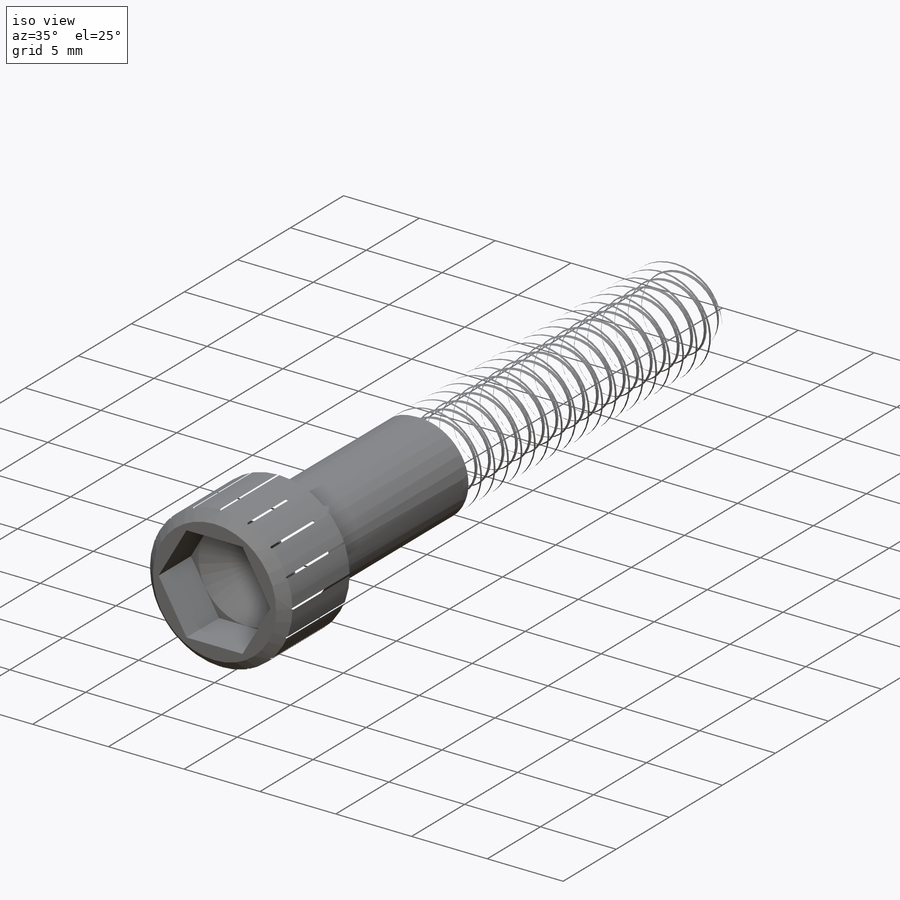
[diagram: iso view]
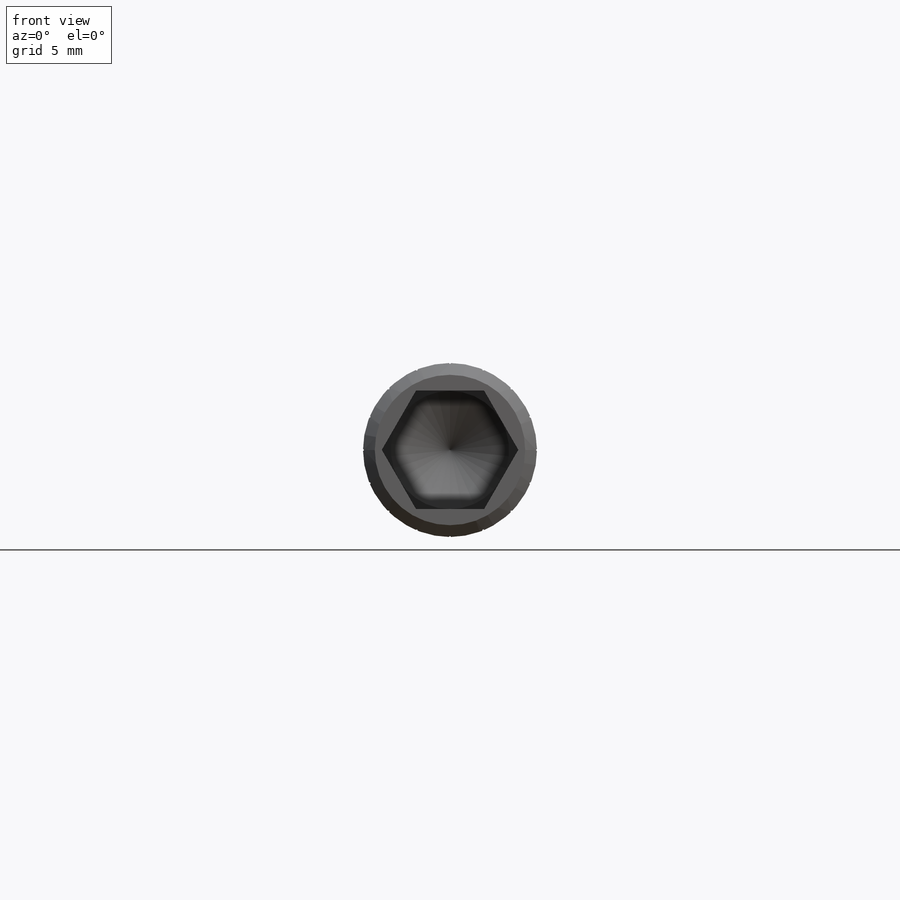
[diagram: front view]
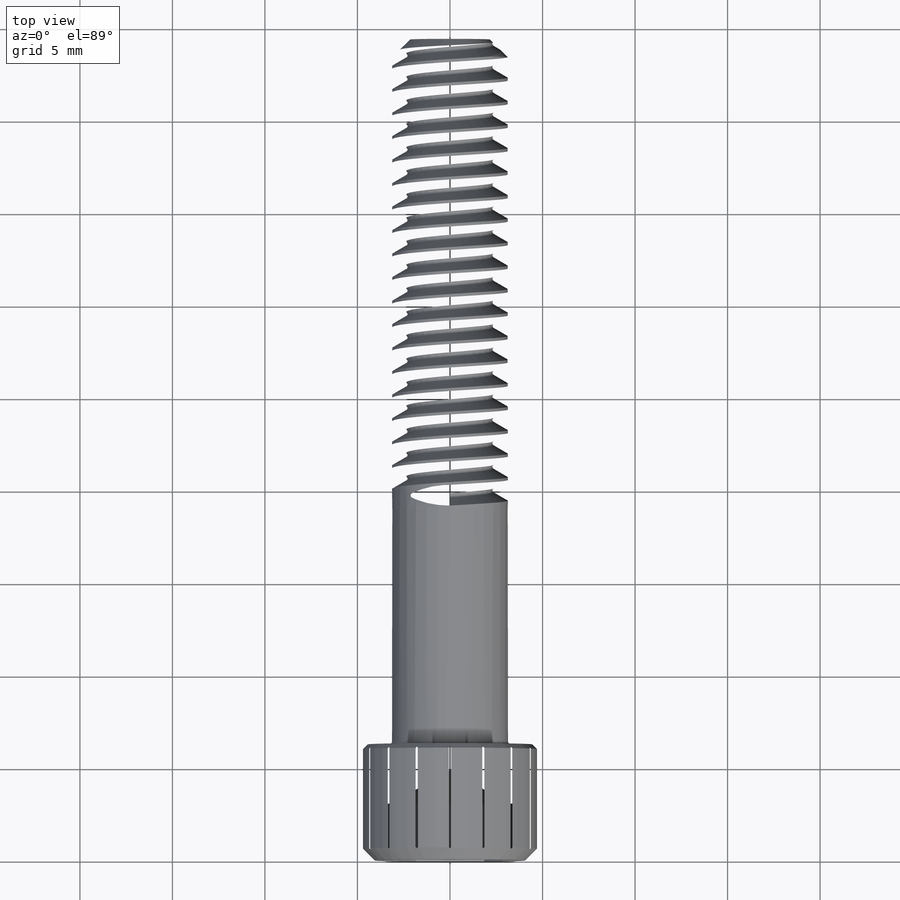
[diagram: top view]
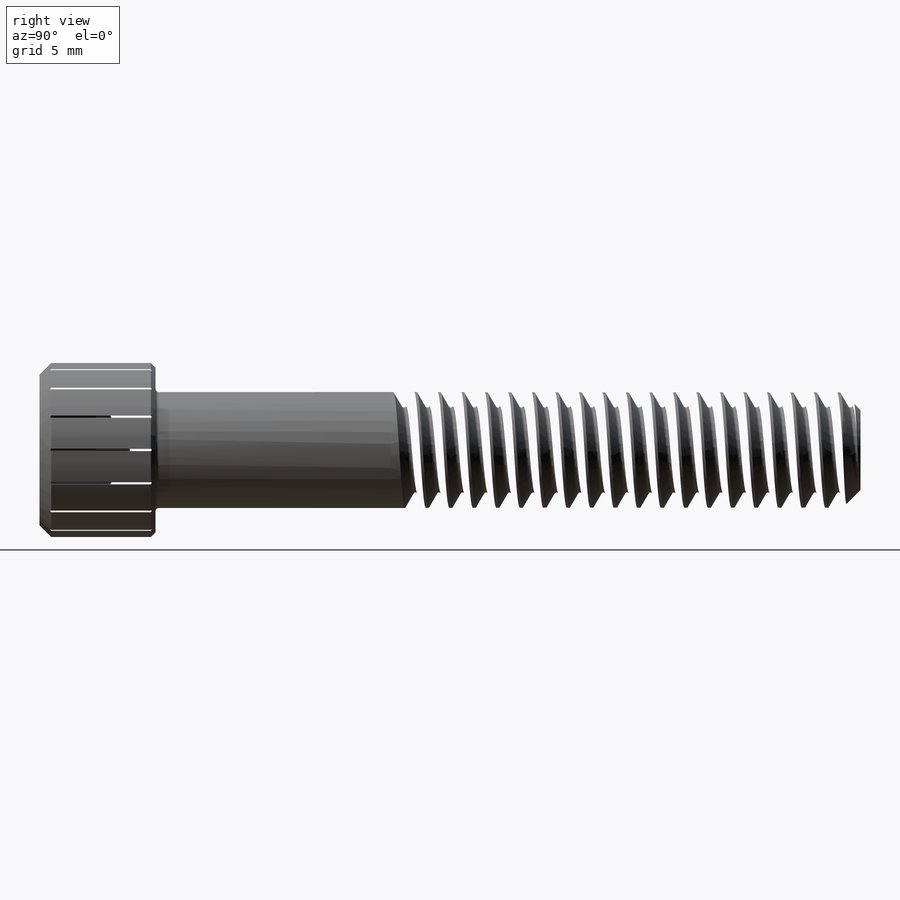
[diagram: right view]
SOLIDWORKS PART (.sldprt)
format: sldprt  version: not decoded by parser v0  size: 1,192,448 bytes
history: native  units: mm
features: sketch x6, cut_extrude x3, material x1, revolve x1, helix x1, sweep x1, pattern_circular x1 (+12 scaffold rows collapsed)
feature tree (26):
  scaffold x12  (default folders/planes/origin — collapsed)
  material  "Alloy Steel (SS)"
  sketch  "Sketch1"  dims[c1.D18=~0.103359mm c1.D11=0.1778mm c1.D1=6.2738mm c1.D2=4.699mm c1.D3=~0.898026mm c2.D3=45.0deg c3.D3=~0.898026mm c4.D3=45.0deg c4.D4=0.254mm c5.D4=45.0deg c5.D6=~3.19405mm c5.D8=~3.19405mm c6.D8=30.0deg c6.D9=3.048mm c6.D10=~3.133725mm c6.D11=12.7mm c6.D12=25.4mm c6.D13=19.05mm c6.D14=~1.364101mm c7.D14=45.0deg c7.D15=~3.123565mm c7.D16=~0.964565mm c7.D17=~3.123565mm c7.D12=6.35mm c8.D17=6.35mm c9.D17=~0.091673deg c9.D1=38.1mm c9.D6=3.048mm c9.D10=~3.133725mm c9.D14=2.159mm c9.D18=3.429mm]
  revolve  "Revolve1"  Angle=360deg
  sketch  "Sketch2"  dims[c1.D2=6.3881mm c1.D3=~3.19405mm c2.D3=120.0deg c3.D3=~7.376343mm c3.D1=6.0]
  cut_extrude  "Cut-Extrude1"  Depth=3.048mm
  sketch  "Sketch3"  dims[D1=~6.26745mm]
  helix  "Helix/Spiral1"  Pitch=25.4mm
  sketch  "Sketch4"  dims[c1.D9=~0.13716mm c1.D1=~0.15875mm c1.D2=~1.099852mm c1.D3=~0.137482mm c1.D4=~0.998239mm c2.D4=60.0deg c2.D2=~1.099852mm c2.D5=~0.274963mm c2.D6=~0.15875mm c2.D7=~0.835167mm c2.D8=0.3175mm c2.D9=~0.137482mm c3.D9=60.0deg c4.D9=~44.511841mm c4.D10=~44.929425mm c4.D11=~45.664508mm c5.D9=~0.835167mm c5.D4=~44.511841mm c5.D6=~44.929424mm c5.D7=~45.664508mm c6.D4=1.27mm c6.D6=~1.152667mm c6.D7=~0.714374mm c6.D9=44.3738mm c6.D10=~0.723276mm c6.D11=~0.069223mm c6.D12=~0.137482mm c7.D12=60.0deg c7.D13=~0.15875mm c7.D3=~0.137482mm c7.D4=0.3175mm c7.D8=~0.137482mm c8.D8=60.0deg c9.D8=~0.15875mm c10.D8=~60.000023deg c10.D5=~0.274963mm]
  sweep  "Cut-Sweep1"
  sketch  "Sketch5"  dims[D1=0.0mm]
  cut_extrude  "Cut-Extrude2"  [1 undecoded]
  sketch  "Sketch6"  dims[c1.D1=4.699mm c1.D3=0.0254mm c1.D2=~0.063077mm c2.D3=~0.063077mm c2.D2=~0.063077mm c2.D1=0.0635mm]
  cut_extrude  "Cut-Extrude3"  [1 undecoded]
  pattern_circular  "CirPattern1"  Count=16 Angle=22.5deg
decode coverage: 10 of 13 modeling features carry decoded parameters
note: ~ marks probable driven/reference dimensions
note: 2 parameter values undecoded
note: suppression state not decoded; provenance and decode notes live in map.json
